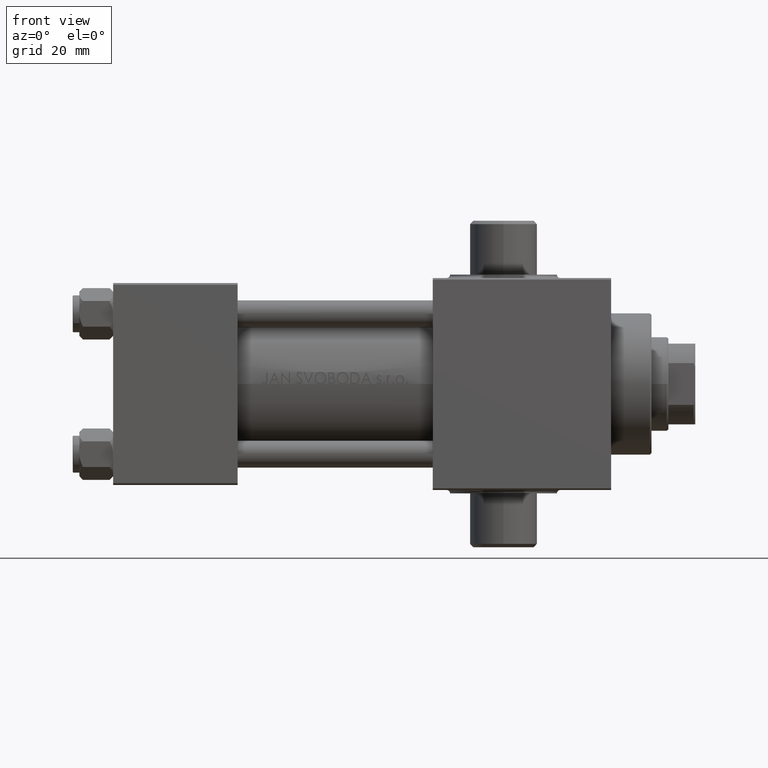
[diagram: clean part render]
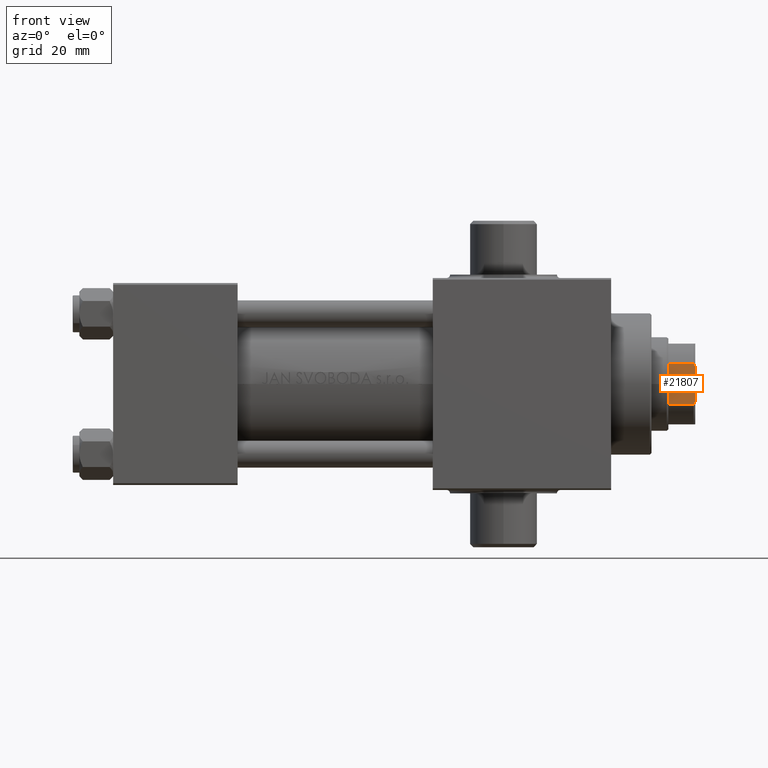
[diagram: same view with one face highlighted and labeled with its STEP entity id]
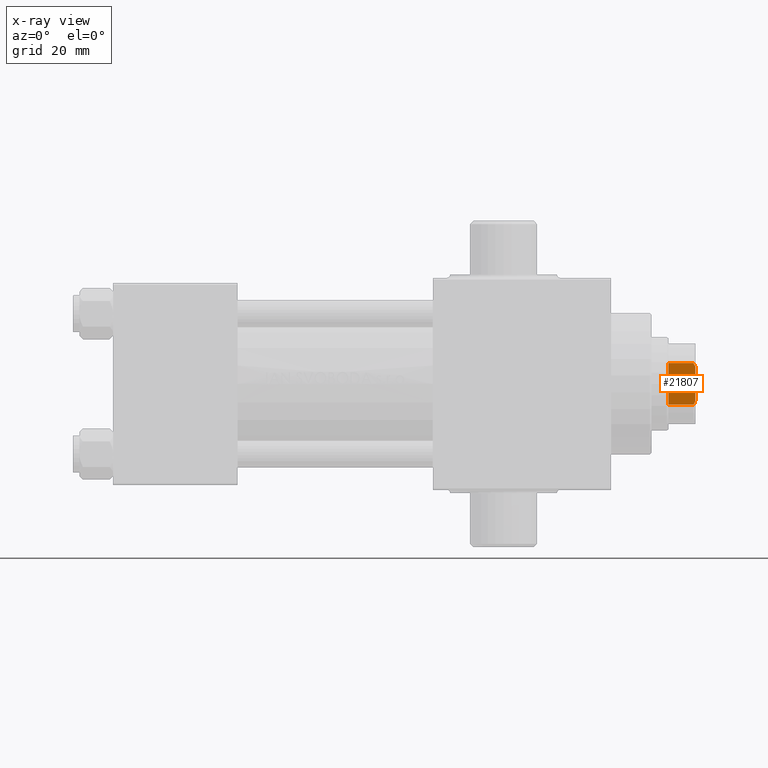
[diagram: x-ray of the same camera — body ghosted, the highlighted face saturated]
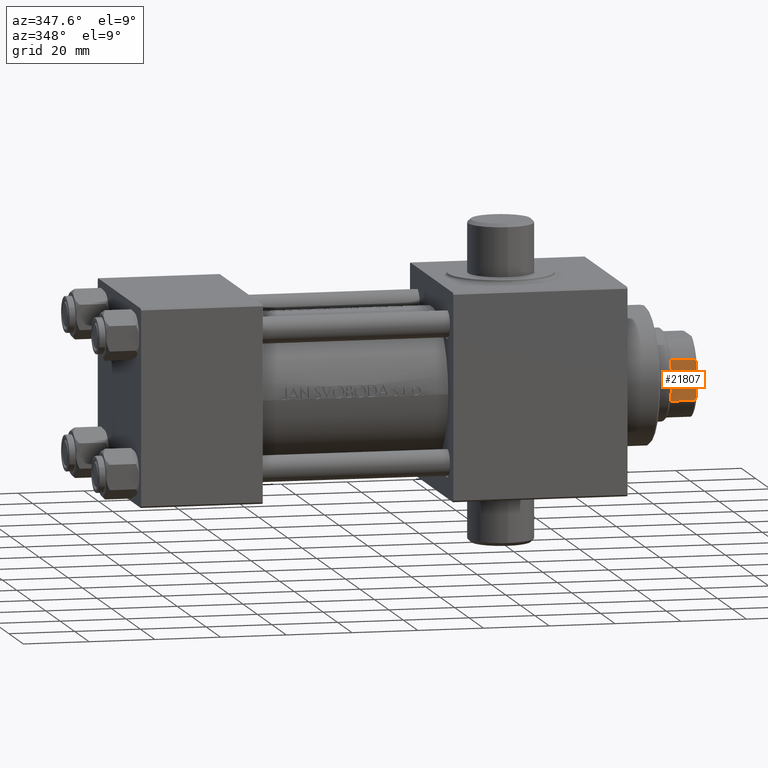
[diagram: same view with one face highlighted and labeled with its STEP entity id]
A machine part, front view. The second image highlights one B-rep face of the part: STEP entity #21807.
The next image is the same camera in x-ray: the body ghosted, the highlighted face saturated — about 0% of this face is hidden behind the body in this view.
A second angle (auxiliary view) of the same face is appended — the face is thin or edge-on in the first view.
In plain terms, the highlighted planar face has unit normal (0, 1, 0).
Its self-contained STEP definition (entity closure, byte-faithful):
#129 = EDGE_CURVE ( 'NONE', #43322, #32429, #30997, .T. ) ;
#1126 = CARTESIAN_POINT ( 'NONE',  ( 11.99999999999999467, -6.184658438426501981, 128.0000000000000853 ) ) ;
#2341 = CARTESIAN_POINT ( 'NONE',  ( 11.99999999999999645, 11.99999999999999645, 136.0000000000000000 ) ) ;
#3500 = CARTESIAN_POINT ( 'NONE',  ( 12.00000000000000178, -5.000000000000056843, 136.0000000000000000 ) ) ;
#4043 = VECTOR ( 'NONE', #40628, 1000.000000000000000 ) ;
#5546 = ORIENTED_EDGE ( 'NONE', *, *, #10973, .F. ) ;
#6823 = ORIENTED_EDGE ( 'NONE', *, *, #35378, .T. ) ;
#6842 = CARTESIAN_POINT ( 'NONE',  ( 11.99999999999999645, 11.99999999999999645, 128.0000000000000000 ) ) ;
#7126 = VERTEX_POINT ( 'NONE', #3500 ) ;
#8427 = EDGE_CURVE ( 'NONE', #29468, #32121, #40724, .T. ) ;
#8667 = ORIENTED_EDGE ( 'NONE', *, *, #8427, .F. ) ;
#9511 = ORIENTED_EDGE ( 'NONE', *, *, #23308, .T. ) ;
#9649 = VERTEX_POINT ( 'NONE', #28000 ) ;
#10973 = EDGE_CURVE ( 'NONE', #7126, #9649, #25875, .T. ) ;
#11479 = ORIENTED_EDGE ( 'NONE', *, *, #129, .T. ) ;
#11903 = CARTESIAN_POINT ( 'NONE',  ( 11.99999999999999467, -6.184658438426501981, 135.5000000000000284 ) ) ;
#14602 = CARTESIAN_POINT ( 'NONE',  ( 11.99999999999999822, 5.400255697127821719, 135.8460555011047006 ) ) ;
#15400 = CARTESIAN_POINT ( 'NONE',  ( 12.00000000000000178, -5.000000000000056843, 136.0000000000000000 ) ) ;
#15890 = CARTESIAN_POINT ( 'NONE',  ( 11.99999999999999467, -6.184658438426501981, -0.001000000000001000089 ) ) ;
#16597 = DIRECTION ( 'NONE',  ( 2.891205793294678326E-16, -1.000000000000000000, 0.000000000000000000 ) ) ;
#16969 = CARTESIAN_POINT ( 'NONE',  ( 11.99999999999999645, 6.184658438426496652, -0.001000000000001000089 ) ) ;
#19343 = ORIENTED_EDGE ( 'NONE', *, *, #39355, .T. ) ;
#19413 = FACE_OUTER_BOUND ( 'NONE', #37099, .T. ) ;
#20107 = PLANE ( 'NONE',  #32599 ) ;
#21807 = ADVANCED_FACE ( 'NONE', ( #19413 ), #20107, .F. ) ;
#23308 = EDGE_CURVE ( 'NONE', #7126, #32121, #46018, .T. ) ;
#25126 = CARTESIAN_POINT ( 'NONE',  ( 11.99999999999999645, 6.184658438426496652, 135.5000000000000284 ) ) ;
#25291 = LINE ( 'NONE', #6842, #36591 ) ;
#25875 = LINE ( 'NONE', #40177, #4043 ) ;
#26610 = CARTESIAN_POINT ( 'NONE',  ( 12.00000000000000178, -5.400255697127827936, 135.8460555011047006 ) ) ;
#28000 = CARTESIAN_POINT ( 'NONE',  ( 11.99999999999999822, 5.000000000000037303, 136.0000000000000000 ) ) ;
#29338 = VECTOR ( 'NONE', #37908, 1000.000000000000000 ) ;
#29468 = VERTEX_POINT ( 'NONE', #1126 ) ;
#30736 = CARTESIAN_POINT ( 'NONE',  ( 11.99999999999999467, -6.184658438426501981, 135.5000000000000284 ) ) ;
#30997 = LINE ( 'NONE', #16969, #31279 ) ;
#31279 = VECTOR ( 'NONE', #45785, 1000.000000000000000 ) ;
#32121 = VERTEX_POINT ( 'NONE', #30736 ) ;
#32383 = CARTESIAN_POINT ( 'NONE',  ( 11.99999999999999645, 5.794808544282254559, 135.6785991435214385 ) ) ;
#32429 = VERTEX_POINT ( 'NONE', #37264 ) ;
#32599 = AXIS2_PLACEMENT_3D ( 'NONE', #2341, #44484, #16597 ) ;
#34117 = CARTESIAN_POINT ( 'NONE',  ( 12.00000000000000178, -5.794808544282264329, 135.6785991435214385 ) ) ;
#35095 = CARTESIAN_POINT ( 'NONE',  ( 11.99999999999999645, 6.184658438426496652, 128.0000000000000853 ) ) ;
#35378 = EDGE_CURVE ( 'NONE', #29468, #43322, #25291, .T. ) ;
#35628 = DIRECTION ( 'NONE',  ( -2.891205793294678326E-16, 1.000000000000000000, -0.000000000000000000 ) ) ;
#36591 = VECTOR ( 'NONE', #35628, 1000.000000000000000 ) ;
#37099 = EDGE_LOOP ( 'NONE', ( #11479, #19343, #5546, #9511, #8667, #6823 ) ) ;
#37264 = CARTESIAN_POINT ( 'NONE',  ( 11.99999999999999645, 6.184658438426496652, 135.5000000000000284 ) ) ;
#37908 = DIRECTION ( 'NONE',  ( -0.000000000000000000, -0.000000000000000000, 1.000000000000000000 ) ) ;
#39355 = EDGE_CURVE ( 'NONE', #32429, #9649, #41144, .T. ) ;
#39438 = CARTESIAN_POINT ( 'NONE',  ( 11.99999999999999822, 5.000000000000037303, 136.0000000000000000 ) ) ;
#40177 = CARTESIAN_POINT ( 'NONE',  ( 11.99999999999999645, 11.99999999999999645, 136.0000000000000000 ) ) ;
#40628 = DIRECTION ( 'NONE',  ( -2.891205793294678326E-16, 1.000000000000000000, -0.000000000000000000 ) ) ;
#40724 = LINE ( 'NONE', #15890, #29338 ) ;
#41144 = B_SPLINE_CURVE_WITH_KNOTS ( 'NONE', 3,
 ( #25126, #32383, #14602, #39438 ),
 .UNSPECIFIED., .F., .F.,
 ( 4, 4 ),
 ( 0.000000000000000000, 0.001285852097146085102 ),
 .UNSPECIFIED. ) ;
#43322 = VERTEX_POINT ( 'NONE', #35095 ) ;
#44484 = DIRECTION ( 'NONE',  ( -1.000000000000000000, -2.891205793294678326E-16, 0.000000000000000000 ) ) ;
#45785 = DIRECTION ( 'NONE',  ( -0.000000000000000000, -0.000000000000000000, 1.000000000000000000 ) ) ;
#46018 = B_SPLINE_CURVE_WITH_KNOTS ( 'NONE', 3,
 ( #15400, #26610, #34117, #11903 ),
 .UNSPECIFIED., .F., .F.,
 ( 4, 4 ),
 ( 8.673617379884035472E-19, 0.001285852097146073176 ),
 .UNSPECIFIED. ) ;